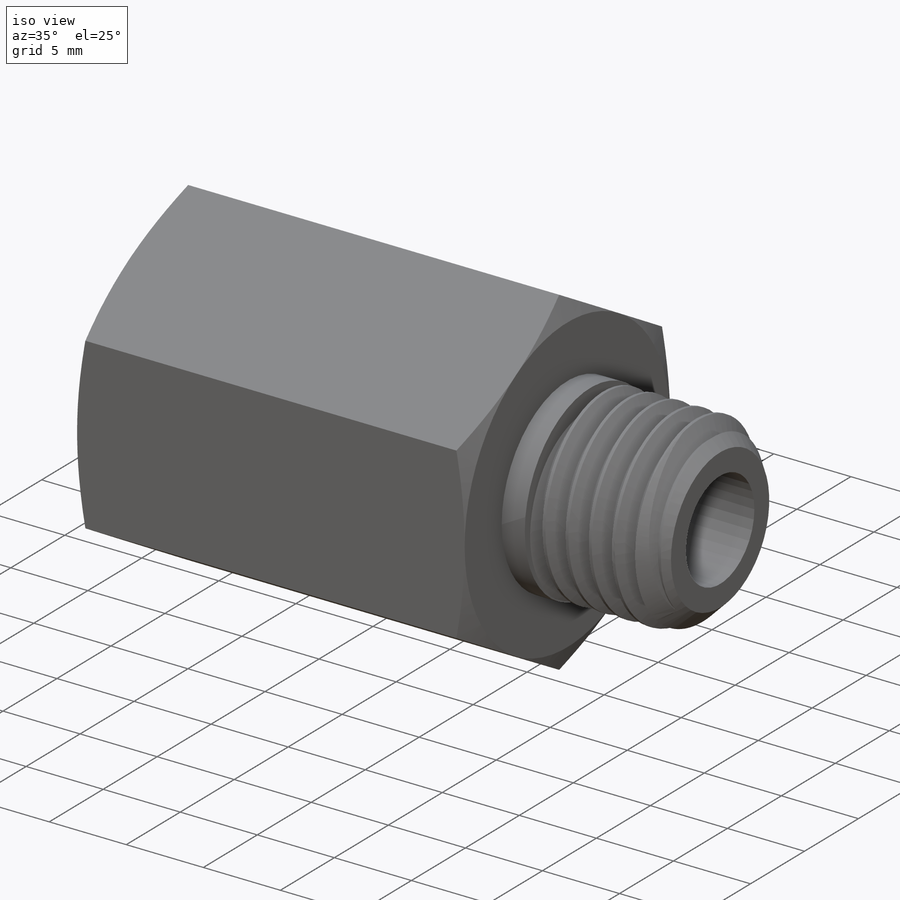
[diagram: iso view]
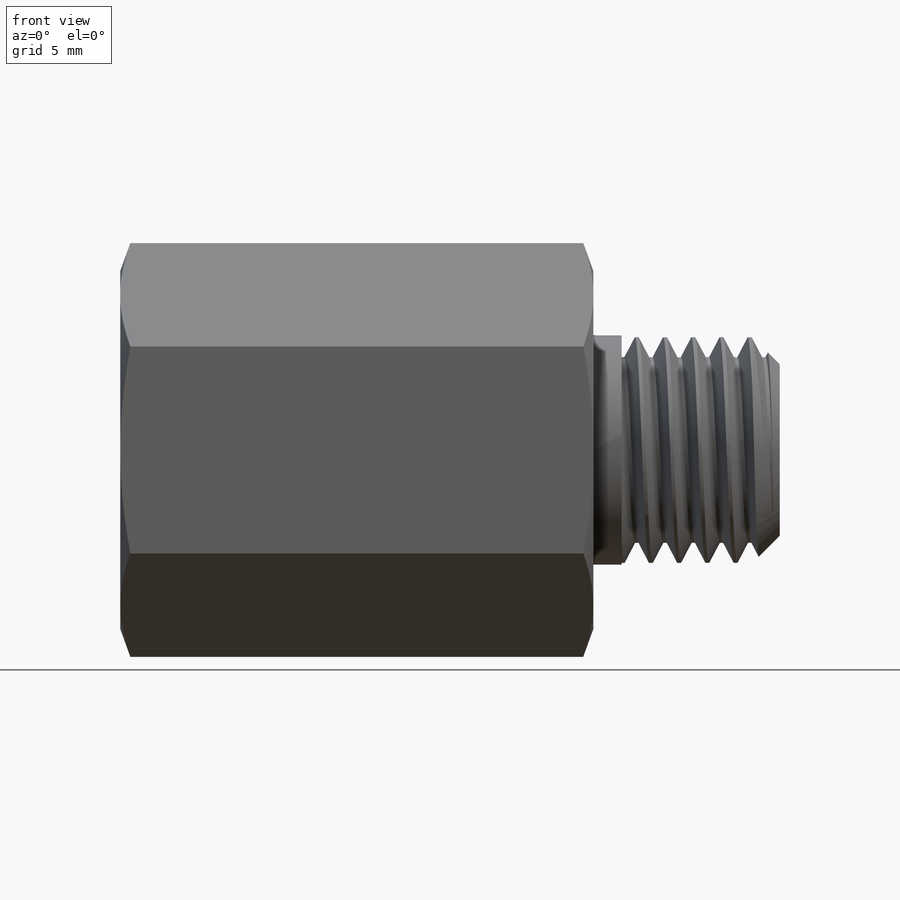
[diagram: front view]
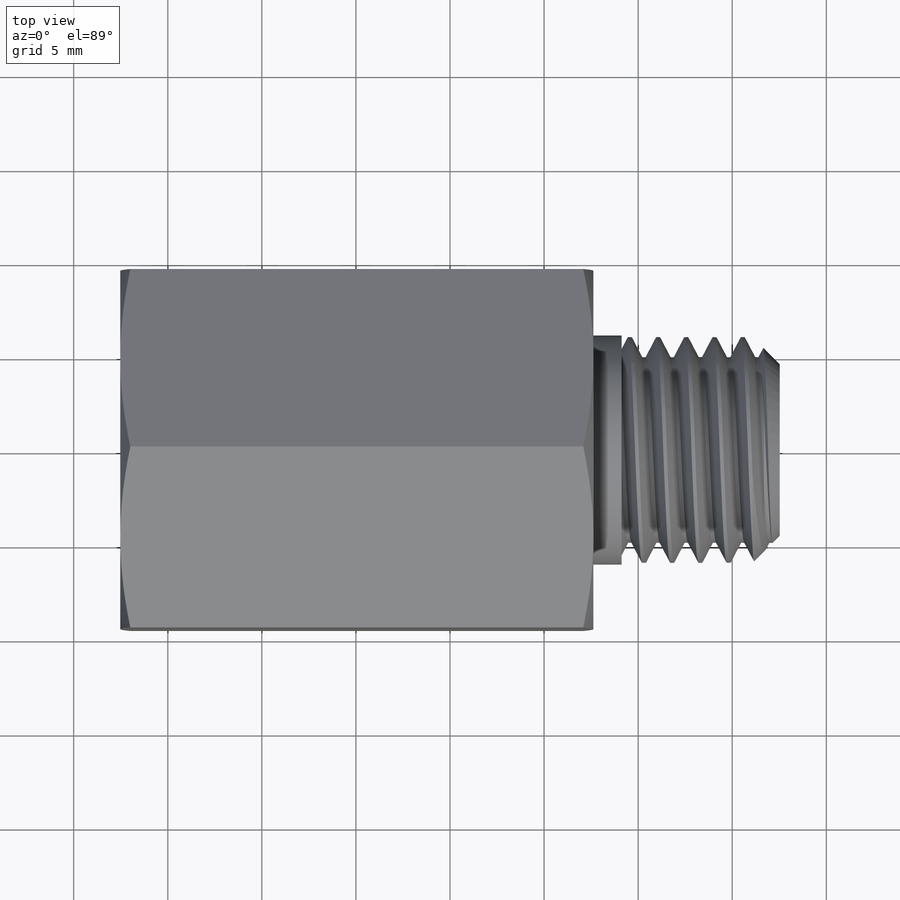
[diagram: top view]
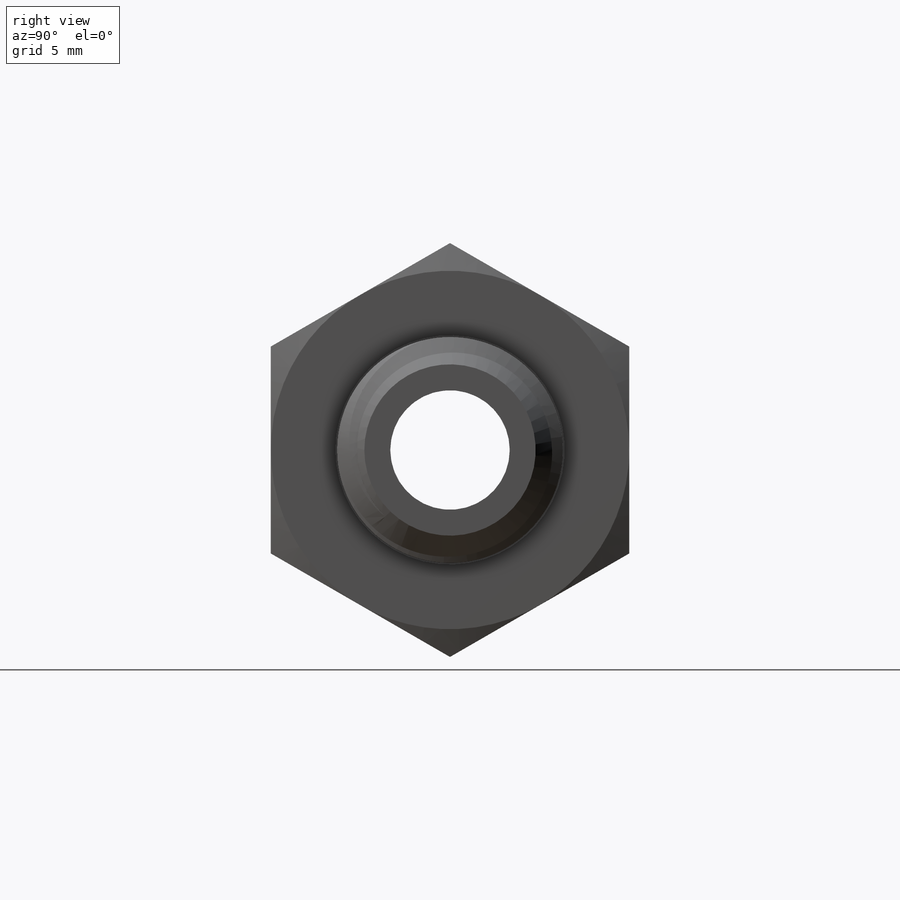
[diagram: right view]
SOLIDWORKS PART (.sldprt)
format: sldprt  version: not decoded by parser v0  size: 981,504 bytes
history: native  units: mm
features: sketch x16, plane x4, cut_extrude x4, revolve x3, extrude x2, helix x2, sweep x2, cut_revolve x2, material x1, boolean_combine x1 (+14 scaffold rows collapsed)
feature tree (51):
  scaffold x14  (default folders/planes/origin — collapsed)
  material  "Material <not specified>"
  sketch  "Sketch1"  dims[c1.D=35.052mm c1.T1 Depth=~10.20572mm c1.T2 Depth=~10.35812mm c1.T1 OD=10.287mm c1.T2 OD=17.145mm c1.R=9.906mm c1.Male OD=12.0mm c1.D1=~9.96696mm c2.D1=~1.783333deg c2.D2=10.287mm c2.T1 OD=~14.547973mm c3.T1 OD=13.716mm c3.D1=~13.55598mm c4.D1=~1.783333deg c4.D2=15.24mm]
  plane  "Plane3"
  sketch  "Sketch2"  dims[Hex=19.05mm]
  extrude  "Extrude1"  [1 undecoded]
  sketch  "Sketch3"
  cut_extrude  "Cut-Extrude1"  [1 undecoded]
  sketch  "Sketch4"
  cut_extrude  "Cut-Extrude2"  [1 undecoded]
  plane  "Plane4"
  sketch  "Sketch5"  dims[Male OD=10.287mm]
  extrude  "Extrude2"  [1 undecoded]
  sketch  "Sketch16"  dims[D1=0.0mm]
  helix  "Helix/Spiral2"  Pitch=11.406mm male pitch=1.5mm
  plane  "Plane1"
  plane  "Plane2"
  sketch  "Sketch7"
  cut_extrude  "Cut-Extrude3"  [1 undecoded]
  sketch  "Sketch8"  dims[D1=0.0mm]
  helix  "Helix/Spiral1"  Pitch=11.616831mm T1 pitch=1.411111mm
  sketch  "Sketch15"  dims[c1.D2=~4.560651mm c2.D2=30.0deg c2.D1=0.254mm]
  sketch  "Sketch10"  dims[c1.D1=~0.589482mm c2.D1=90.0deg c3.D1=~0.176389mm c3.D2=~0.705556mm c3.D3=~1.893413mm c4.D3=60.0deg c4.D4=~1.234722mm c5.D4=10.0deg]
  sweep  "Sweep1"
  cut_extrude  "Cut-Extrude4"  Depth=5.08mm
  sketch  "Sketch11"  dims[c1.D1=~0.183589mm c1.D2=~0.183589mm c1.D3=~1.234722mm c2.D3=10.0deg c2.D4=~1.10874mm c3.D4=55.0deg c3.D3=~1.234722mm c4.D3=10.0deg c4.D2=0.1875mm c5.D3=1.5mm c5.D1=0.1875mm]
  sweep  "Cut-Sweep1"
  sketch  "Sketch17"  dims[c1.D1=~2.444883mm c2.D1=45.0deg c2.D2=~0.658519mm c2.D3=~2.064895mm c3.D3=45.0deg c3.D4=0.381mm c3.D5=0.381mm c3.D6=35.306mm c4.D6=1.5deg c4.D7=~0.13462mm]
  cut_revolve  "Cut-Revolve2"  Angle=360deg
  boolean_combine  "Combine1"
  sketch  "Sketch12"  dims[c1.D1=~4.412788mm c2.D1=30.0deg c2.D2=~4.60542mm c3.D2=30.0deg c3.D3=6.35mm c4.D2=1.016mm c4.D1=10.668mm c5.D1=30.0deg c5.ID=6.35mm c5.D2=~0.680357mm]
  cut_revolve  "Cut-Revolve1"  Angle=360deg
  sketch  "Sketch18"
  revolve  "Revolve1"  Angle=360deg
  sketch  "Sketch19"  dims[D1=18.0mm D2=1.016mm D3=0.127mm]
  revolve  "Revolve2"  Angle=360deg
  sketch  "Sketch20"
  revolve  "Revolve3"  Angle=360deg
decode coverage: 19 of 32 modeling features carry decoded parameters
note: ~ marks probable driven/reference dimensions
note: 5 parameter values undecoded
summary: no parameter record found for 5 features
note: suppression state not decoded; provenance and decode notes live in map.json
